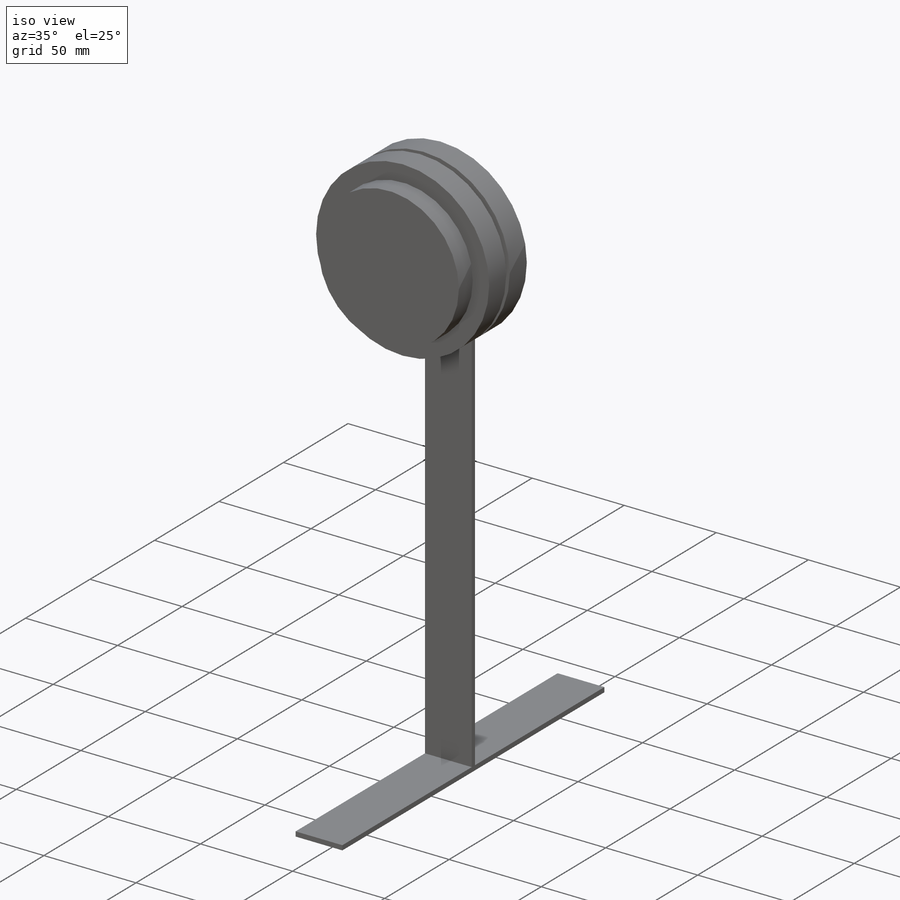
[diagram: iso view]
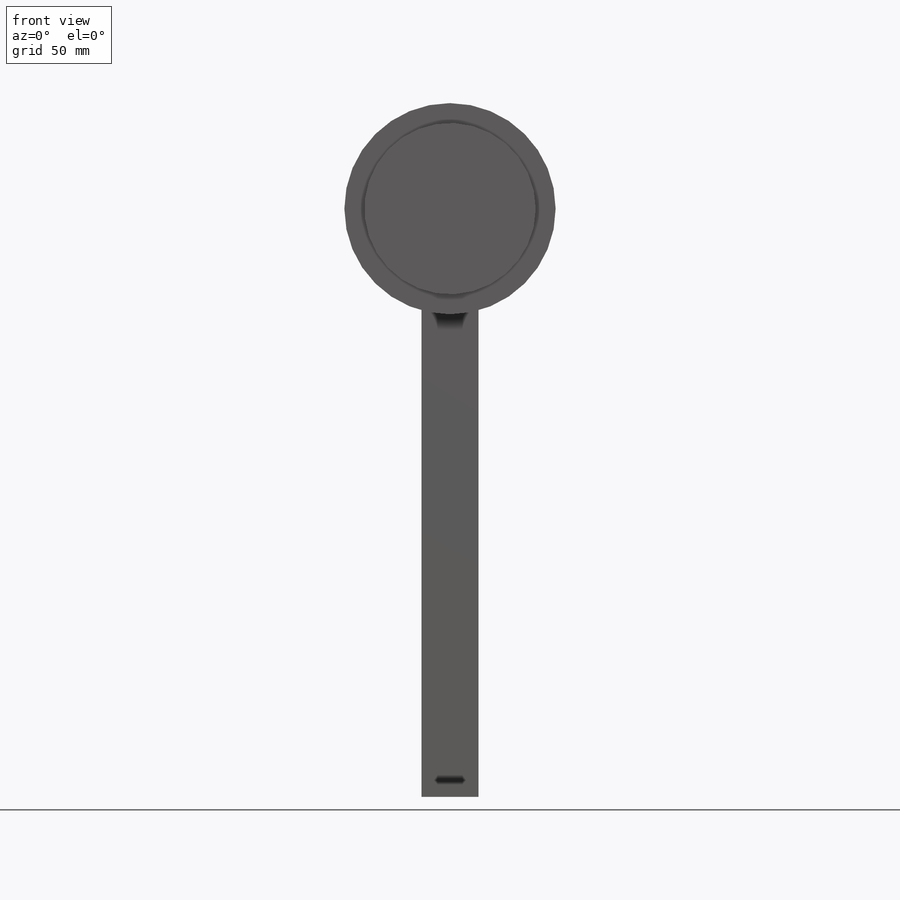
[diagram: front view]
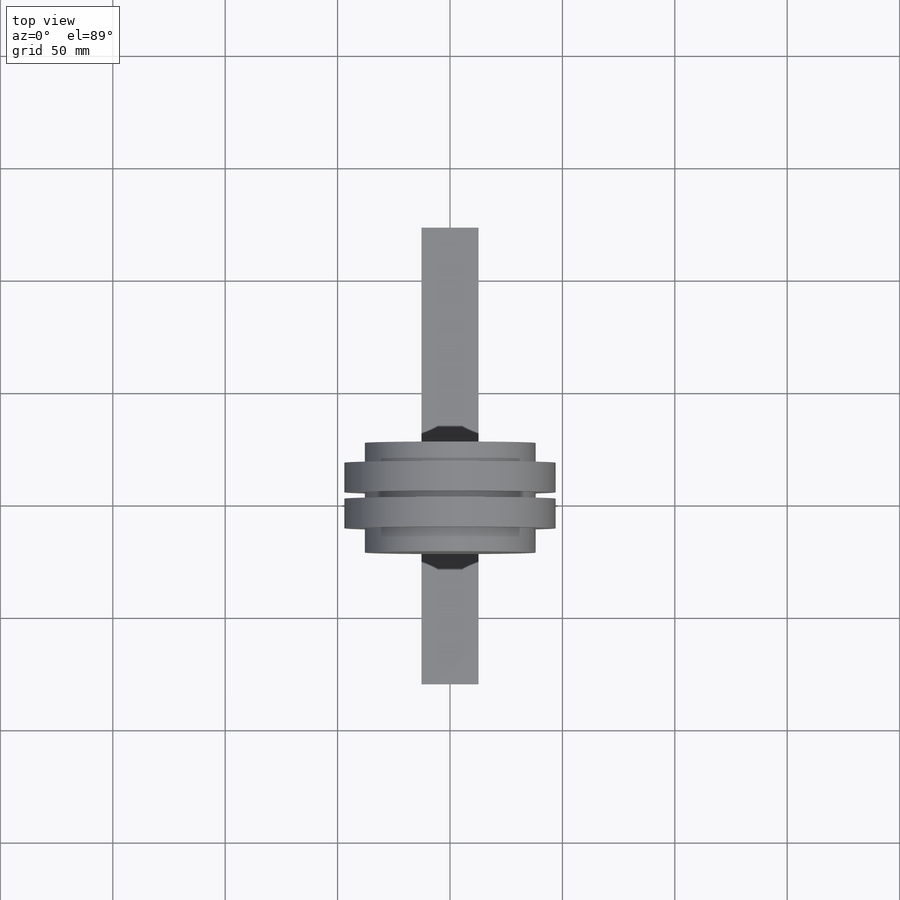
[diagram: top view]
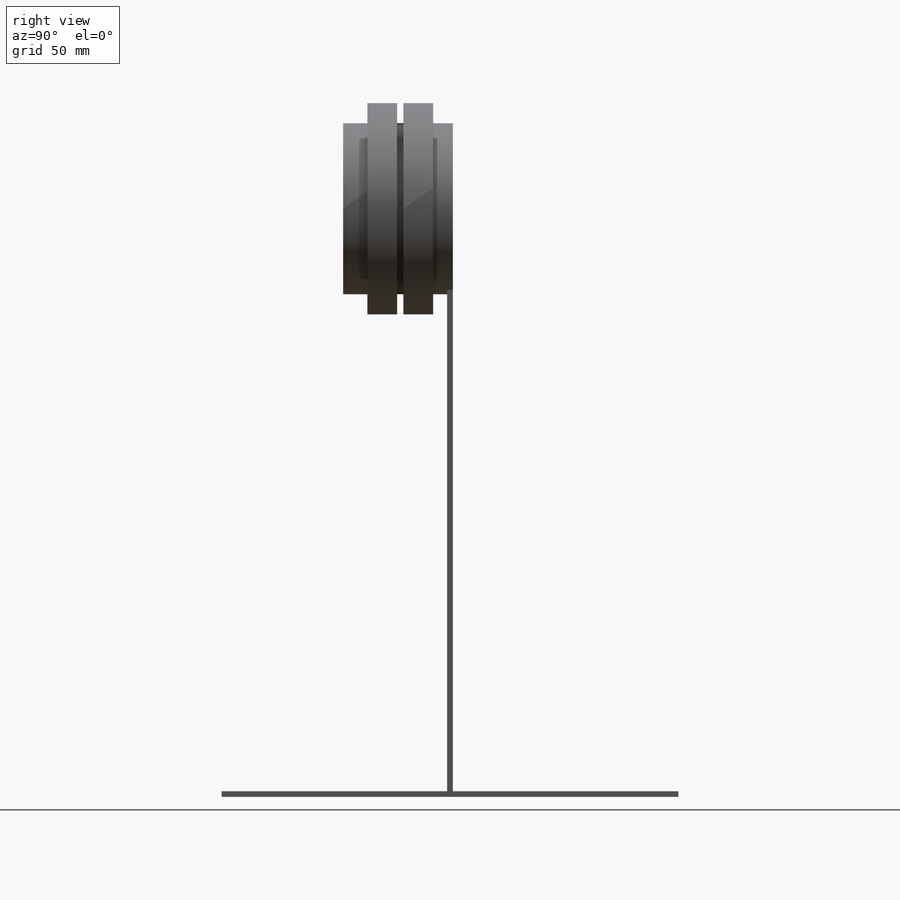
[diagram: right view]
SOLIDWORKS PART (.sldprt)
format: sldprt  version: not decoded by parser v0  size: 188,416 bytes
history: native  units: mm
features: sketch x5, extrude x5, material x1 (+13 scaffold rows collapsed)
feature tree (24):
  scaffold x13  (default folders/planes/origin — collapsed)
  material  "1023 Carbon Steel Sheet (SS)"
  sketch  "Sketch1"  dims[D1=76.2mm]
  extrude  "Hub Center"  Depth=25.4mm
  sketch  "Sketch2"  dims[D1=93.98mm]
  extrude  "Inner Bearing"  Depth=13.208mm
  sketch  "Sketch3"  dims[D1=94.488mm]
  extrude  "Outer Bearing"  Depth=13.208mm
  sketch  "Sketch4"  dims[D1=25.4mm D2=261.62mm]
  extrude  "Tire Arm"  Depth=2.54mm
  sketch  "Sketch5"  dims[D1=203.2mm D2=25.4mm]
  extrude  "Tire Contact Patch"  Depth=2.54mm
decode coverage: 10 of 10 modeling features carry decoded parameters
note: suppression state not decoded; provenance and decode notes live in map.json
